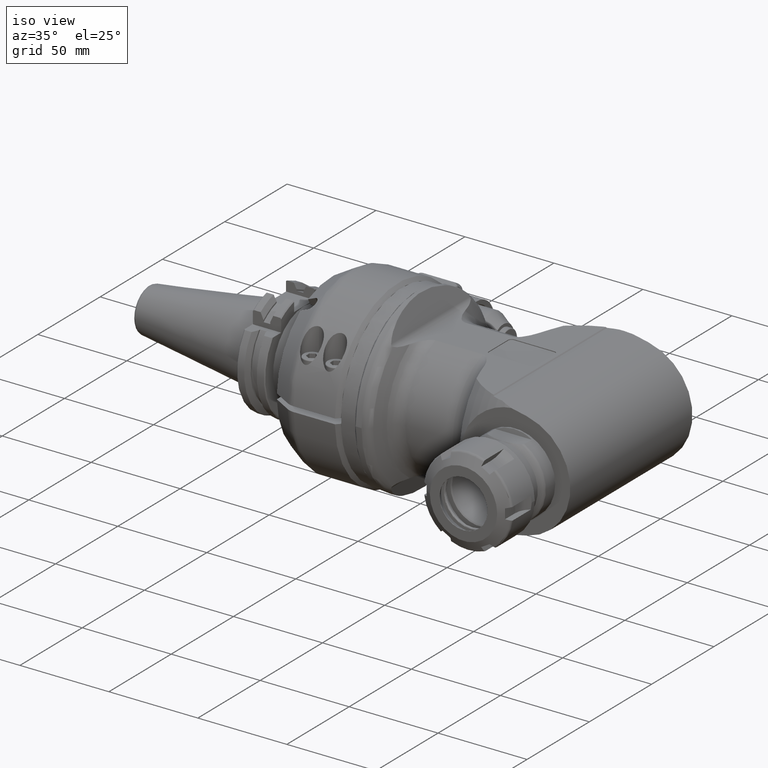
[diagram: clean part render]
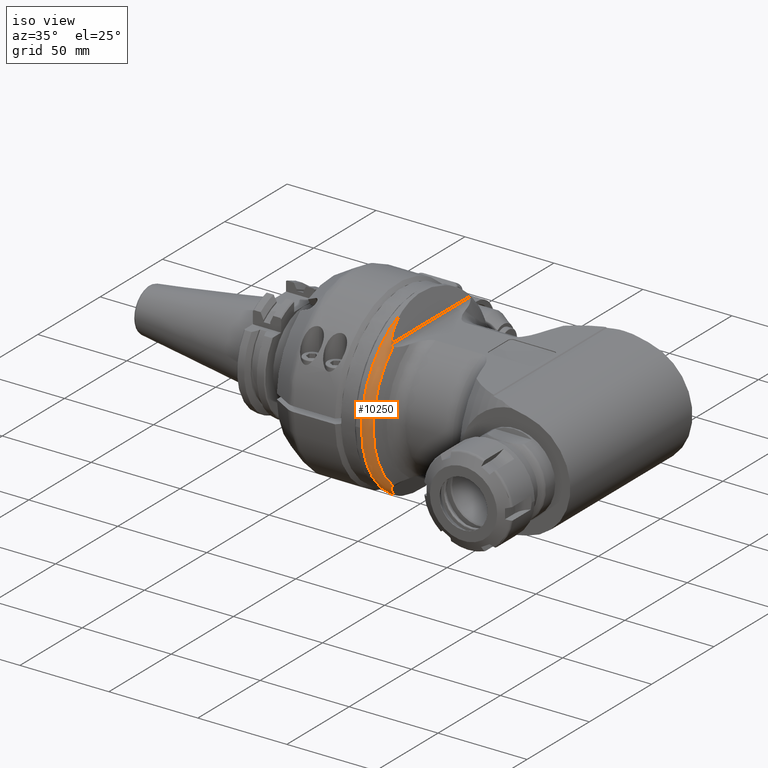
[diagram: same view with one face highlighted and labeled with its STEP entity id]
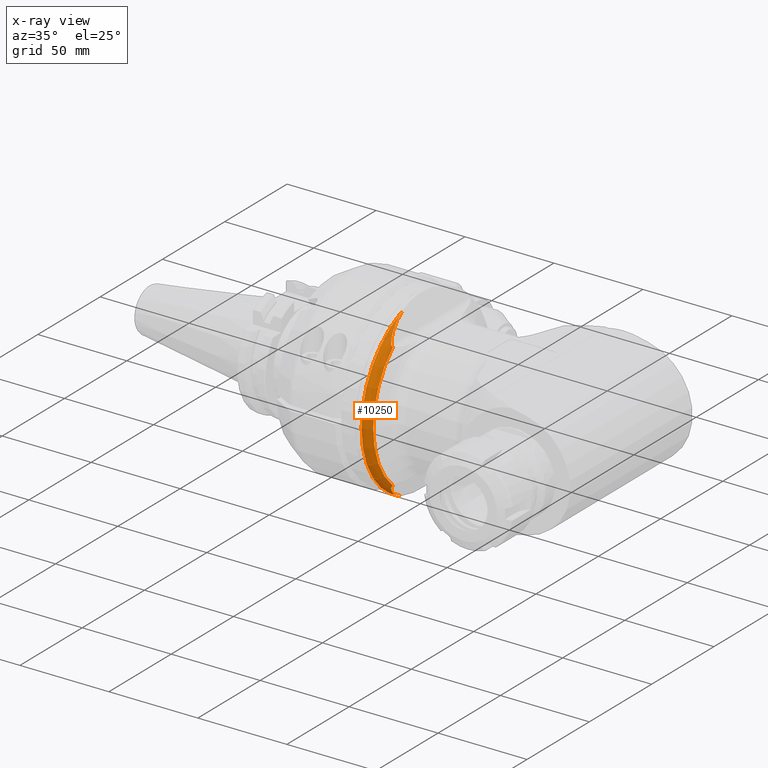
[diagram: x-ray of the same camera — body ghosted, the highlighted face saturated]
A machine part, iso view. The second image highlights one B-rep face of the part: STEP entity #10250.
The next image is the same camera in x-ray: the body ghosted, the highlighted face saturated — about 0% of this face is hidden behind the body in this view.
In plain terms, the highlighted toroidal blend (fillet) surface has major radius 45 mm and minor (blend) radius 5 mm.
Its self-contained STEP definition (entity closure, byte-faithful):
#381=B_SPLINE_CURVE_WITH_KNOTS('',3,(#14951,#14952,#14953,#14954,#14955,
#14956,#14957,#14958,#14959,#14960,#14961,#14962),.UNSPECIFIED.,.F.,.F.,
(4,2,2,2,2,4),(1.15630163760486,1.22459873224959,1.31695713700631,1.40204907066323,
1.50898451468494,1.53966227669797),.UNSPECIFIED.);
#451=B_SPLINE_CURVE_WITH_KNOTS('',3,(#19519,#19520,#19521,#19522,#19523,
#19524,#19525),.UNSPECIFIED.,.F.,.F.,(4,3,4),(3.30248776745844,3.42753401940917,
3.62248695338785),.UNSPECIFIED.);
#452=B_SPLINE_CURVE_WITH_KNOTS('',3,(#19528,#19529,#19530,#19531,#19532,
#19533,#19534,#19535,#19536,#19537,#19538,#19539,#19540,#19541),
 .UNSPECIFIED.,.F.,.F.,(4,2,2,2,2,2,4),(8.52445448942661,8.63978623946649,
8.9704434475925,9.30110065571852,9.67241647902402,10.0437323023295,10.2382390719203),
 .UNSPECIFIED.);
#453=B_SPLINE_CURVE_WITH_KNOTS('',3,(#19546,#19547,#19548,#19549,#19550,
#19551,#19552,#19553,#19554,#19555,#19556,#19557,#19558,#19559),
 .UNSPECIFIED.,.F.,.F.,(4,2,2,2,2,2,4),(3.46326501541199,3.65777178500081,
4.02908760830632,4.40040343161182,4.73106063973784,5.06171784786385,5.17704959790373),
 .UNSPECIFIED.);
#574=TOROIDAL_SURFACE('',#10893,45.,5.);
#2455=FACE_OUTER_BOUND('',#3017,.T.);
#3017=EDGE_LOOP('',(#7108,#7109,#7110,#7111,#7112,#7113,#7114));
#3599=CIRCLE('',#10854,47.11309145933);
#3617=CIRCLE('',#10894,50.);
#3618=CIRCLE('',#10895,50.);
#4091=VERTEX_POINT('',#14922);
#4092=VERTEX_POINT('',#14935);
#4093=VERTEX_POINT('',#14950);
#4139=VERTEX_POINT('',#19517);
#4140=VERTEX_POINT('',#19527);
#4141=VERTEX_POINT('',#19542);
#4142=VERTEX_POINT('',#19544);
#5241=EDGE_CURVE('',#4092,#4091,#3599,.T.);
#5243=EDGE_CURVE('',#4092,#4093,#381,.T.);
#5333=EDGE_CURVE('',#4139,#4091,#451,.T.);
#5334=EDGE_CURVE('',#4140,#4139,#452,.T.);
#5335=EDGE_CURVE('',#4140,#4141,#3617,.T.);
#5336=EDGE_CURVE('',#4141,#4142,#3618,.T.);
#5337=EDGE_CURVE('',#4093,#4142,#453,.T.);
#7108=ORIENTED_EDGE('',*,*,#5334,.F.);
#7109=ORIENTED_EDGE('',*,*,#5335,.T.);
#7110=ORIENTED_EDGE('',*,*,#5336,.T.);
#7111=ORIENTED_EDGE('',*,*,#5337,.F.);
#7112=ORIENTED_EDGE('',*,*,#5243,.F.);
#7113=ORIENTED_EDGE('',*,*,#5241,.T.);
#7114=ORIENTED_EDGE('',*,*,#5333,.F.);
#10250=ADVANCED_FACE('',(#2455),#574,.T.);
#10854=AXIS2_PLACEMENT_3D('',#14936,#11921,#11922);
#10893=AXIS2_PLACEMENT_3D('',#19526,#12001,#12002);
#10894=AXIS2_PLACEMENT_3D('',#19543,#12003,#12004);
#10895=AXIS2_PLACEMENT_3D('',#19545,#12005,#12006);
#11921=DIRECTION('center_axis',(-1.,0.,0.));
#11922=DIRECTION('ref_axis',(0.,-1.,0.));
#12001=DIRECTION('center_axis',(-1.,0.,0.));
#12002=DIRECTION('ref_axis',(0.,-1.,1.22464679914735E-16));
#12003=DIRECTION('center_axis',(1.,0.,0.));
#12004=DIRECTION('ref_axis',(0.,-1.,0.));
#12005=DIRECTION('center_axis',(1.,0.,0.));
#12006=DIRECTION('ref_axis',(0.,-1.,0.));
#14922=CARTESIAN_POINT('',(196.909284501666,-31.197641652121,35.3036902037306));
#14935=CARTESIAN_POINT('',(196.909284501613,-31.1976416522546,-35.3036902037658));
#14936=CARTESIAN_POINT('Origin',(196.9092845007,0.,0.));
#14950=CARTESIAN_POINT('',(196.1051567178,-31.53007086037,-36.63191942671));
#14951=CARTESIAN_POINT('Ctrl Pts',(196.90928450166,-31.1976416525379,-35.3036902032917));
#14952=CARTESIAN_POINT('Ctrl Pts',(196.867802760606,-31.2805425470323,-35.3491463016619));
#14953=CARTESIAN_POINT('Ctrl Pts',(196.822525568012,-31.3582431962635,-35.4008129039564));
#14954=CARTESIAN_POINT('Ctrl Pts',(196.707822409925,-31.5199050766533,-35.5403684488626));
#14955=CARTESIAN_POINT('Ctrl Pts',(196.636305973062,-31.5952282481428,-35.6335627887394));
#14956=CARTESIAN_POINT('Ctrl Pts',(196.492629336941,-31.6889909577115,-35.8437858272666));
#14957=CARTESIAN_POINT('Ctrl Pts',(196.425259734238,-31.7086422740172,-35.9523251351443));
#14958=CARTESIAN_POINT('Ctrl Pts',(196.281442863696,-31.6992777188419,-36.2130204636942));
#14959=CARTESIAN_POINT('Ctrl Pts',(196.211711753331,-31.6567958545707,-36.3612311502517));
#14960=CARTESIAN_POINT('Ctrl Pts',(196.136859439701,-31.5738049700807,-36.5470853575159));
#14961=CARTESIAN_POINT('Ctrl Pts',(196.120710741279,-31.5530527069985,-36.5891850982887));
#14962=CARTESIAN_POINT('Ctrl Pts',(196.105156717758,-31.5300708603673,-36.6319194266932));
#19517=CARTESIAN_POINT('',(196.1051567178,-31.53007086038,36.63191942669));
#19519=CARTESIAN_POINT('Ctrl Pts',(196.105156717764,-31.5300708603769,36.6319194266754));
#19520=CARTESIAN_POINT('Ctrl Pts',(196.181328649595,-31.6426186942238,36.4226387639796));
#19521=CARTESIAN_POINT('Ctrl Pts',(196.273362370242,-31.7087119497583,36.2221670955522));
#19522=CARTESIAN_POINT('Ctrl Pts',(196.387018939686,-31.7048861411552,36.0223476182343));
#19523=CARTESIAN_POINT('Ctrl Pts',(196.564214827875,-31.6989215272592,35.7108197414566));
#19524=CARTESIAN_POINT('Ctrl Pts',(196.765367010042,-31.4852594932355,35.4613964010003));
#19525=CARTESIAN_POINT('Ctrl Pts',(196.909284501718,-31.197641652422,35.3036902032281));
#19526=CARTESIAN_POINT('Origin',(192.3777456357,0.,0.));
#19527=CARTESIAN_POINT('',(192.3777456357,-17.40492767463,46.87289720767));
#19528=CARTESIAN_POINT('Ctrl Pts',(192.377745635738,-17.4049276746258,46.8728972076726));
#19529=CARTESIAN_POINT('Ctrl Pts',(192.427101632847,-17.7701216774767,46.737292720101));
#19530=CARTESIAN_POINT('Ctrl Pts',(192.477751510717,-18.1296968241042,46.5981333243543));
#19531=CARTESIAN_POINT('Ctrl Pts',(192.678012482352,-19.4961631036191,46.0479208267895));
#19532=CARTESIAN_POINT('Ctrl Pts',(192.856173361094,-20.590220041838,45.5584278354153));
#19533=CARTESIAN_POINT('Ctrl Pts',(193.250349658616,-22.7176844987486,44.4754373586897));
#19534=CARTESIAN_POINT('Ctrl Pts',(193.46656037435,-23.7507826391231,43.8814032993668));
#19535=CARTESIAN_POINT('Ctrl Pts',(193.918058123146,-25.6827605825767,42.640923429617));
#19536=CARTESIAN_POINT('Ctrl Pts',(194.201366183599,-26.7614724252077,41.8625409307726));
#19537=CARTESIAN_POINT('Ctrl Pts',(194.823715761596,-28.762998259754,40.1526495182193));
#19538=CARTESIAN_POINT('Ctrl Pts',(195.162728215626,-29.6858895034814,39.221220455856));
#19539=CARTESIAN_POINT('Ctrl Pts',(195.680661636613,-30.8101966263514,37.7982100769141));
#19540=CARTESIAN_POINT('Ctrl Pts',(195.891535296277,-31.2144345402302,37.2188394586297));
#19541=CARTESIAN_POINT('Ctrl Pts',(196.105156717809,-31.5300708603187,36.6319194266602));
#19542=CARTESIAN_POINT('',(192.377745635738,-50.,6.12323399573677E-15));
#19543=CARTESIAN_POINT('Origin',(192.3777456357,0.,0.));
#19544=CARTESIAN_POINT('',(192.3777456357,-17.40492767463,-46.87289720767));
#19545=CARTESIAN_POINT('Origin',(192.3777456357,0.,0.));
#19546=CARTESIAN_POINT('Ctrl Pts',(196.105156717802,-31.5300708603091,-36.631919426678));
#19547=CARTESIAN_POINT('Ctrl Pts',(195.891535296273,-31.2144345402221,-37.2188394586415));
#19548=CARTESIAN_POINT('Ctrl Pts',(195.680661636611,-30.8101966263475,-37.7982100769191));
#19549=CARTESIAN_POINT('Ctrl Pts',(195.162728215626,-29.6858895034814,-39.221220455856));
#19550=CARTESIAN_POINT('Ctrl Pts',(194.823715761596,-28.762998259754,-40.1526495182193));
#19551=CARTESIAN_POINT('Ctrl Pts',(194.201366183599,-26.7614724252077,-41.8625409307726));
#19552=CARTESIAN_POINT('Ctrl Pts',(193.918058123146,-25.6827605825767,-42.640923429617));
#19553=CARTESIAN_POINT('Ctrl Pts',(193.46656037435,-23.7507826391231,-43.8814032993668));
#19554=CARTESIAN_POINT('Ctrl Pts',(193.250349658616,-22.7176844987486,-44.4754373586897));
#19555=CARTESIAN_POINT('Ctrl Pts',(192.856173361094,-20.590220041838,-45.5584278354153));
#19556=CARTESIAN_POINT('Ctrl Pts',(192.678012482352,-19.4961631036191,-46.0479208267895));
#19557=CARTESIAN_POINT('Ctrl Pts',(192.477751510717,-18.1296968241042,-46.5981333243543));
#19558=CARTESIAN_POINT('Ctrl Pts',(192.427101632847,-17.7701216774767,-46.737292720101));
#19559=CARTESIAN_POINT('Ctrl Pts',(192.377745635738,-17.4049276746258,-46.8728972076726));